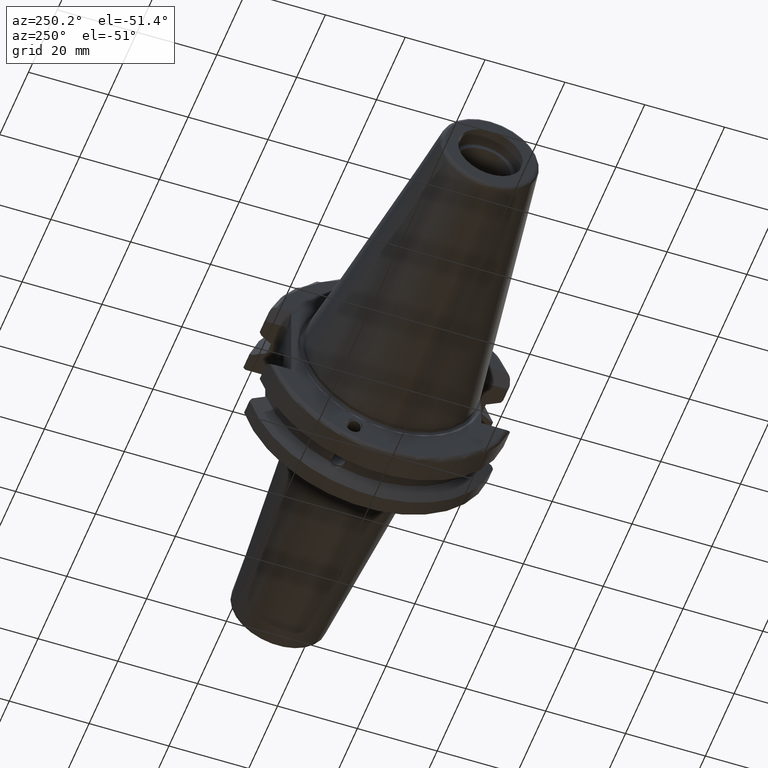
[diagram: clean part render]
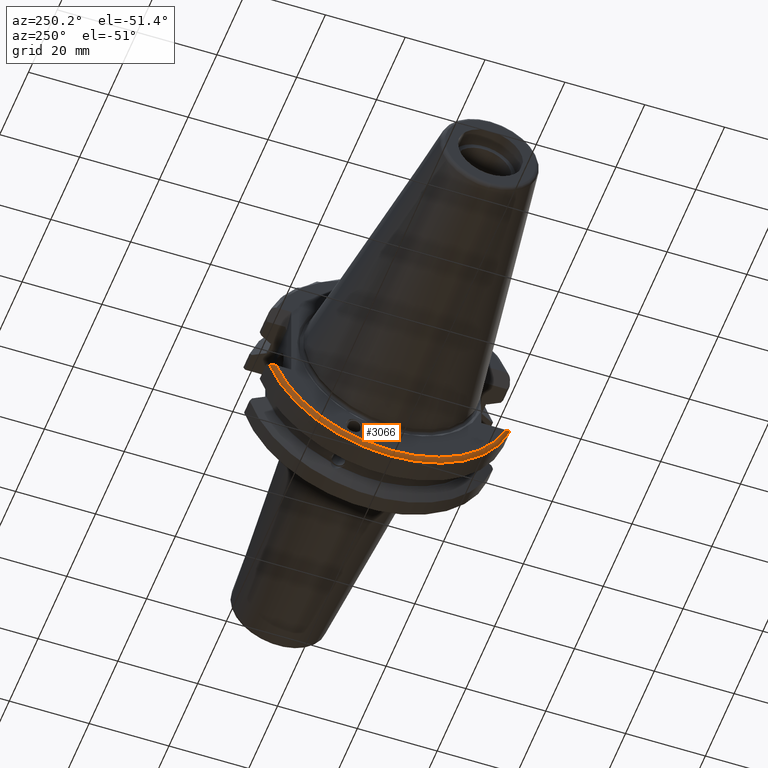
[diagram: same view with one face highlighted and labeled with its STEP entity id]
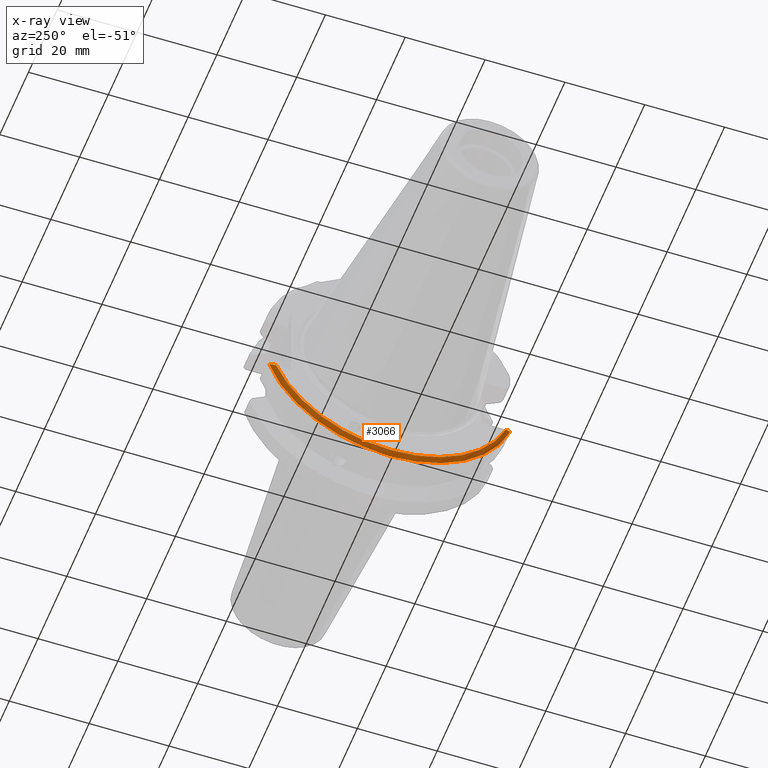
[diagram: x-ray of the same camera — body ghosted, the highlighted face saturated]
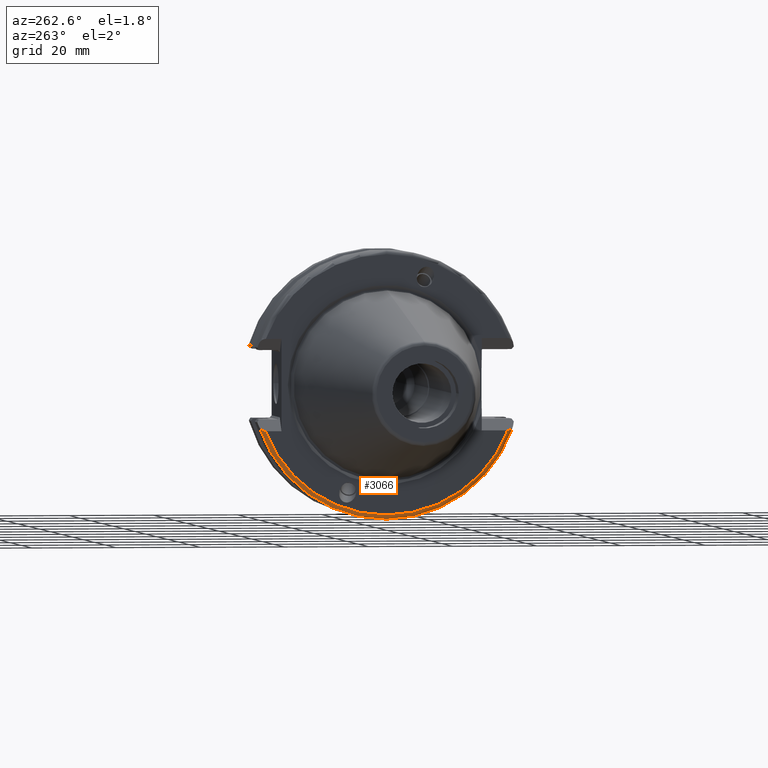
[diagram: same view with one face highlighted and labeled with its STEP entity id]
A machine part, auxiliary view. The second image highlights one B-rep face of the part: STEP entity #3066.
The next image is the same camera in x-ray: the body ghosted, the highlighted face saturated — about 0% of this face is hidden behind the body in this view.
A second angle (auxiliary view) of the same face is appended — the face is thin or edge-on in the first view.
In plain terms, the highlighted toroidal blend (fillet) surface has major radius 30.75 mm and minor (blend) radius 1 mm.
Its self-contained STEP definition (entity closure, byte-faithful):
#585=CARTESIAN_POINT('',(2.E0,3.017035631212E1,-9.89E0));
#586=CARTESIAN_POINT('',(1.890705393913E0,3.013452897077E1,-9.999294606087E0));
#587=CARTESIAN_POINT('',(1.691854658699E0,3.003184418883E1,-1.019814534130E1));
#588=CARTESIAN_POINT('',(1.442518294024E0,2.981711625208E1,-1.044748170598E1));
#589=CARTESIAN_POINT('',(1.250890221422E0,2.957238650364E1,-1.063910977858E1));
#590=CARTESIAN_POINT('',(1.107683548555E0,2.930363173148E1,-1.078231645145E1));
#591=CARTESIAN_POINT('',(1.018804804514E0,2.901977330157E1,-1.087119519549E1));
#592=CARTESIAN_POINT('',(1.E0,2.884374514489E1,-1.089E1));
#593=CARTESIAN_POINT('',(1.E0,2.875709303807E1,-1.089E1));
#663=CARTESIAN_POINT('',(2.E0,0.E0,0.E0));
#664=DIRECTION('',(1.E0,0.E0,0.E0));
#665=DIRECTION('',(0.E0,-9.502474429013E-1,-3.114960629921E-1));
#666=AXIS2_PLACEMENT_3D('',#663,#664,#665);
#668=CARTESIAN_POINT('',(1.E0,0.E0,0.E0));
#669=DIRECTION('',(-1.E0,0.E0,0.E0));
#670=DIRECTION('',(0.E0,9.351900174981E-1,-3.541463414634E-1));
#671=AXIS2_PLACEMENT_3D('',#668,#669,#670);
#912=CARTESIAN_POINT('',(1.E0,-2.875709303807E1,-1.089E1));
#913=CARTESIAN_POINT('',(1.E0,-2.884392447036E1,-1.089E1));
#914=CARTESIAN_POINT('',(1.018872397931E0,-2.902023433684E1,-1.087112760207E1));
#915=CARTESIAN_POINT('',(1.108036638160E0,-2.930452843212E1,-1.078196336184E1));
#916=CARTESIAN_POINT('',(1.251373974677E0,-2.957299859626E1,-1.063862602532E1));
#917=CARTESIAN_POINT('',(1.441933628535E0,-2.981638053925E1,-1.044806637147E1));
#918=CARTESIAN_POINT('',(1.690877114406E0,-3.003121662961E1,-1.019912288559E1));
#919=CARTESIAN_POINT('',(1.890240441991E0,-3.013437655710E1,-9.999759558009E0));
#920=CARTESIAN_POINT('',(2.E0,-3.017035631212E1,-9.89E0));
#1913=VERTEX_POINT('',#585);
#1914=VERTEX_POINT('',#593);
#1915=VERTEX_POINT('',#912);
#1916=VERTEX_POINT('',#920);
#3053=CARTESIAN_POINT('',(2.E0,0.E0,0.E0));
#3054=DIRECTION('',(1.E0,0.E0,0.E0));
#3055=DIRECTION('',(0.E0,9.999995644445E-1,9.333331978274E-4));
#3056=AXIS2_PLACEMENT_3D('',#3053,#3054,#3055);
#3057=TOROIDAL_SURFACE('',#3056,3.075E1,1.E0);
#3059=ORIENTED_EDGE('',*,*,#3058,.T.);
#3060=ORIENTED_EDGE('',*,*,#3006,.T.);
#3061=ORIENTED_EDGE('',*,*,#3020,.T.);
#3063=ORIENTED_EDGE('',*,*,#3062,.T.);
#3064=EDGE_LOOP('',(#3059,#3060,#3061,#3063));
#3065=FACE_OUTER_BOUND('',#3064,.F.);
#3066=ADVANCED_FACE('',(#3065),#3057,.T.);
#594=B_SPLINE_CURVE_WITH_KNOTS('',3,(#585,#586,#587,#588,#589,#590,#591,#592,
#593),.UNSPECIFIED.,.F.,.F.,(4,1,1,1,1,1,4),(0.E0,1.666666666667E-1,
3.333333333333E-1,5.E-1,6.666666666667E-1,8.333333333333E-1,1.E0),
.UNSPECIFIED.);
#667=CIRCLE('',#666,3.175E1);
#672=CIRCLE('',#671,3.075E1);
#921=B_SPLINE_CURVE_WITH_KNOTS('',3,(#912,#913,#914,#915,#916,#917,#918,#919,
#920),.UNSPECIFIED.,.F.,.F.,(4,1,1,1,1,1,4),(0.E0,1.666666666667E-1,
3.333333333333E-1,5.E-1,6.666666666667E-1,8.333333333333E-1,1.E0),
.UNSPECIFIED.);
#3006=EDGE_CURVE('',#1913,#1914,#594,.T.);
#3020=EDGE_CURVE('',#1914,#1915,#672,.T.);
#3058=EDGE_CURVE('',#1916,#1913,#667,.T.);
#3062=EDGE_CURVE('',#1915,#1916,#921,.T.);